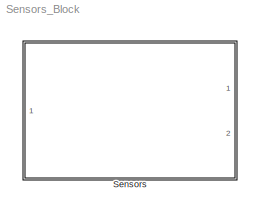
MODEL Sensors_Block
KIND library
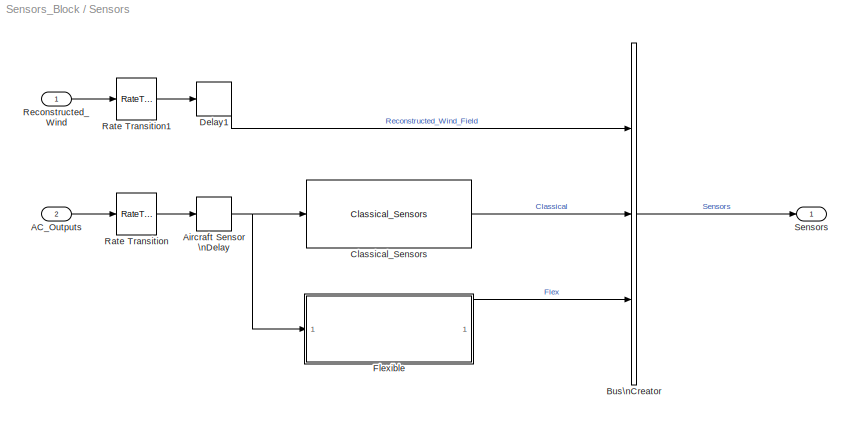
BLOCK [SubSystem] Sensors
  Ports = [2, 1]
  RequestExecContextInheritance = off
  SID = 1
BLOCK [Inport] Sensors/AC_Outputs
  IconDisplay = Port number
  Port = 2
  SID = 3
BLOCK [Delay] Sensors/Aircraft Sensor \nDelay
  DelayLength = CRM.Sensors.Measure_Delay
  InputPortMap = u0
  Ports = [1, 1]
  SID = 4
BLOCK [BusCreator] Sensors/Bus\nCreator
  DisplayOption = bar
  InheritFromInputs = on
  Inputs = 3
  Ports = [3, 1]
  SID = 5
BLOCK [Reference] Sensors/Classical_Sensors  REF=lib_Sim_CRM/Classical_Sensors
  GeneratePreprocessorConditionals = off
  Ports = [1, 1]
  SID = 6
  ShowPortLabels = FromPortIcon
  SourceBlock = lib_Sim_CRM/Classical_Sensors
  SourceType = SubSystem
  SystemSampleTime = -1
BLOCK [Delay] Sensors/Delay1
  DelayLength = 0
  InputPortMap = u0
  Ports = [1, 1]
  SID = 7
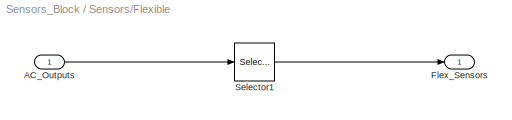
BLOCK [SubSystem] Sensors/Flexible
  Commented = on
  Ports = [1, 1]
  RequestExecContextInheritance = off
  SID = 122
BLOCK [Inport] Sensors/Flexible/AC_Outputs
  IconDisplay = Port number
  SID = 123
BLOCK [Outport] Sensors/Flexible/Flex_Sensors
  IconDisplay = Port number
  SID = 125
BLOCK [Selector] Sensors/Flexible/Selector1
  IndexOptions = Index vector (dialog)
  Indices = [1:25]
  InputPortWidth = 25
  OutputSizes = 1
  Ports = [1, 1]
  SID = 124
BLOCK [RateTransition] Sensors/Rate Transition
  OutPortSampleTime = CRM.FCS.SampleTime
  SID = 126
BLOCK [RateTransition] Sensors/Rate Transition1
  OutPortSampleTime = CRM.FCS.SampleTime
  SID = 127
BLOCK [Inport] Sensors/Reconstructed_Wind
  IconDisplay = Port number
  SID = 2
BLOCK [Outport] Sensors/Sensors
  IconDisplay = Port number
  SID = 128
LINE Sensors/AC_Outputs:1 -> Sensors/Rate Transition:1
NET Sensors/Aircraft Sensor \nDelay:1 -> Sensors/Classical_Sensors:1, Sensors/Flexible:1
LINE Sensors/Bus\nCreator:1 -> Sensors/Sensors:1
LINE Sensors/Classical_Sensors:1 -> Sensors/Bus\nCreator:2
LINE Sensors/Delay1:1 -> Sensors/Bus\nCreator:1
LINE Sensors/Flexible/AC_Outputs:1 -> Sensors/Flexible/Selector1:1
LINE Sensors/Flexible/Selector1:1 -> Sensors/Flexible/Flex_Sensors:1
LINE Sensors/Flexible:1 -> Sensors/Bus\nCreator:3
LINE Sensors/Rate Transition1:1 -> Sensors/Delay1:1
LINE Sensors/Rate Transition:1 -> Sensors/Aircraft Sensor \nDelay:1
LINE Sensors/Reconstructed_Wind:1 -> Sensors/Rate Transition1:1
note: NET lines group one-source signal fan-out (src -> all destinations, sorted); 1:1 wires keep LINE
